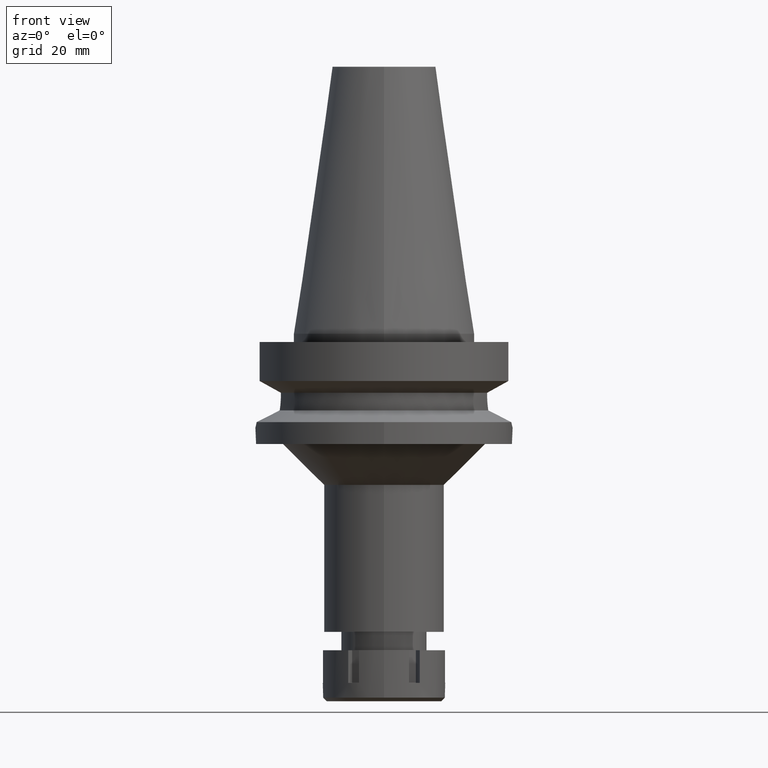
[diagram: clean part render]
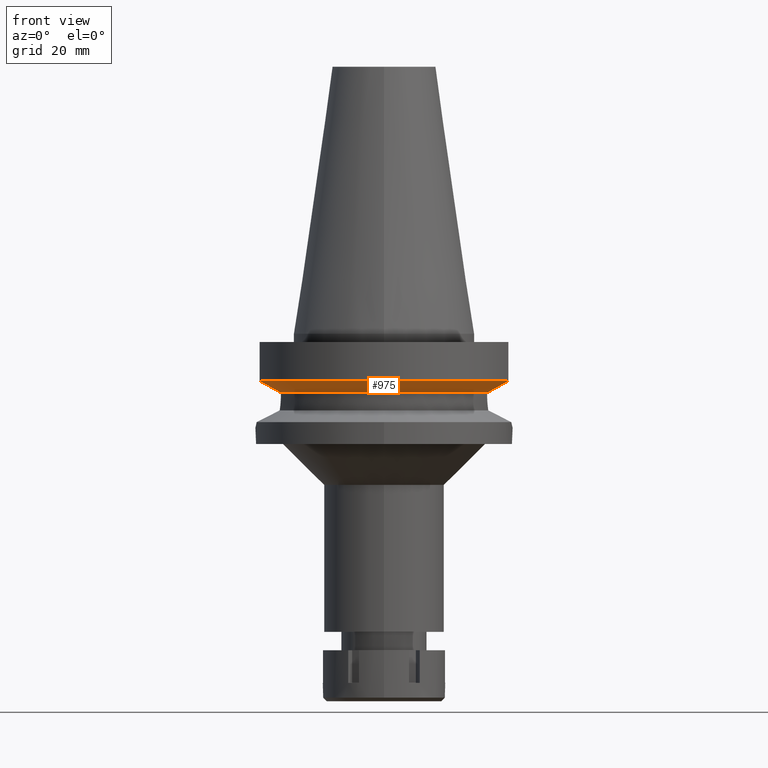
[diagram: same view with one face highlighted and labeled with its STEP entity id]
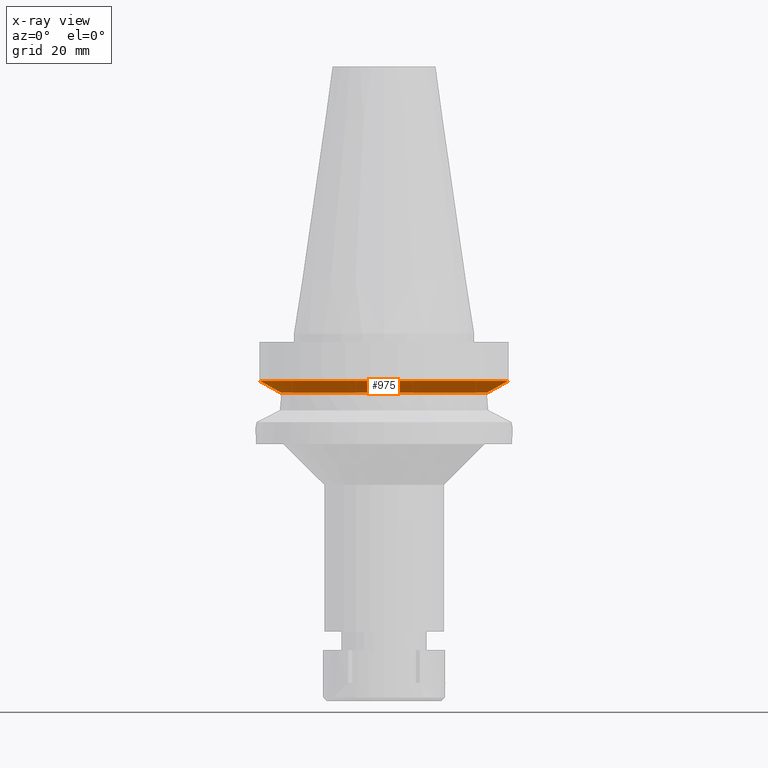
[diagram: x-ray of the same camera — body ghosted, the highlighted face saturated]
A machine part, front view. The second image highlights one B-rep face of the part: STEP entity #975.
The next image is the same camera in x-ray: the body ghosted, the highlighted face saturated — about 0% of this face is hidden behind the body in this view.
In plain terms, the highlighted conical surface has half-angle 60 deg.
Its self-contained STEP definition (entity closure, byte-faithful):
#33 = EDGE_CURVE ( 'NONE', #2329, #616, #1383, .T. ) ;
#96 = ORIENTED_EDGE ( 'NONE', *, *, #3308, .T. ) ;
#148 = B_SPLINE_CURVE_WITH_KNOTS ( 'NONE', 3,
 ( #1047, #1026, #1285, #1938 ),
 .UNSPECIFIED., .F., .F.,
 ( 4, 4 ),
 ( 0.0000000000000000000, 1.000000000000000000 ),
 .UNSPECIFIED. ) ;
#188 = AXIS2_PLACEMENT_3D ( 'NONE', #661, #1467, #2915 ) ;
#272 = CARTESIAN_POINT ( 'NONE',  ( 30.45402272279000044, -8.049999999999000622, -11.56550565266999975 ) ) ;
#328 = CARTESIAN_POINT ( 'NONE',  ( -28.57292325414670486, -8.049998554783693194, -12.61549607589054212 ) ) ;
#451 = CARTESIAN_POINT ( 'NONE',  ( 25.24772266958000344, -8.050000000000000711, -14.45225699861000024 ) ) ;
#616 = VERTEX_POINT ( 'NONE', #272 ) ;
#661 = CARTESIAN_POINT ( 'NONE',  ( 0.0000000000000000000, 1.065333950388000029E-14, -11.56550565266999975 ) ) ;
#737 = CIRCLE ( 'NONE', #1398, 26.50000000000000711 ) ;
#809 = ORIENTED_EDGE ( 'NONE', *, *, #33, .F. ) ;
#891 = VERTEX_POINT ( 'NONE', #451 ) ;
#954 = CARTESIAN_POINT ( 'NONE',  ( -30.45402291391999938, -8.049999276920999591, -11.56551216528999859 ) ) ;
#975 = ADVANCED_FACE ( 'NONE', ( #1391 ), #2022, .T. ) ;
#1008 = DIRECTION ( 'NONE',  ( 0.9527442516822307583, -0.3037735849057093818, 0.0000000000000000000 ) ) ;
#1026 = CARTESIAN_POINT ( 'NONE',  ( 26.83757718998259278, -8.050003169609766474, -13.57772971496465431 ) ) ;
#1047 = CARTESIAN_POINT ( 'NONE',  ( 25.24772266958000344, -8.050000000000000711, -14.45225699861000024 ) ) ;
#1052 = ORIENTED_EDGE ( 'NONE', *, *, #3566, .F. ) ;
#1257 = ORIENTED_EDGE ( 'NONE', *, *, #1416, .T. ) ;
#1285 = CARTESIAN_POINT ( 'NONE',  ( 28.57294940656076676, -8.050008287769291115, -12.61547996380608971 ) ) ;
#1383 = CIRCLE ( 'NONE', #188, 31.50000000000000000 ) ;
#1391 = FACE_OUTER_BOUND ( 'NONE', #3244, .T. ) ;
#1398 = AXIS2_PLACEMENT_3D ( 'NONE', #2363, #2999, #1008 ) ;
#1416 = EDGE_CURVE ( 'NONE', #891, #616, #148, .T. ) ;
#1422 = CARTESIAN_POINT ( 'NONE',  ( -25.24772413223999834, -8.049995412576999243, -14.45229205250999804 ) ) ;
#1444 = CARTESIAN_POINT ( 'NONE',  ( -25.24772413223999834, -8.049995412576999243, -14.45229205250999804 ) ) ;
#1467 = DIRECTION ( 'NONE',  ( 0.0000000000000000000, 0.0000000000000000000, 1.000000000000000000 ) ) ;
#1887 = CARTESIAN_POINT ( 'NONE',  ( 0.0000000000000000000, 1.065333950388000029E-14, -13.00888132564000088 ) ) ;
#1938 = CARTESIAN_POINT ( 'NONE',  ( 30.45402272279000044, -8.049999999999000622, -11.56550565266999975 ) ) ;
#2022 = CONICAL_SURFACE ( 'NONE', #3216, 29.00000000000000000, 1.047197551196400456 ) ;
#2171 = DIRECTION ( 'NONE',  ( 0.0000000000000000000, 1.000000000000000000, 0.0000000000000000000 ) ) ;
#2211 = DIRECTION ( 'NONE',  ( 0.0000000000000000000, 0.0000000000000000000, 1.000000000000000000 ) ) ;
#2329 = VERTEX_POINT ( 'NONE', #2402 ) ;
#2363 = CARTESIAN_POINT ( 'NONE',  ( 0.0000000000000000000, 1.065333950388000029E-14, -14.45225699861000024 ) ) ;
#2402 = CARTESIAN_POINT ( 'NONE',  ( -30.45402291391999938, -8.049999276920999591, -11.56551216528999859 ) ) ;
#2567 = VERTEX_POINT ( 'NONE', #1422 ) ;
#2885 = CARTESIAN_POINT ( 'NONE',  ( -26.83754612220824143, -8.049990814995480193, -13.57774890297899617 ) ) ;
#2915 = DIRECTION ( 'NONE',  ( 0.0000000000000000000, -1.000000000000000000, 0.0000000000000000000 ) ) ;
#2999 = DIRECTION ( 'NONE',  ( 0.0000000000000000000, 0.0000000000000000000, -1.000000000000000000 ) ) ;
#3130 = B_SPLINE_CURVE_WITH_KNOTS ( 'NONE', 3,
 ( #954, #328, #2885, #1444 ),
 .UNSPECIFIED., .F., .F.,
 ( 4, 4 ),
 ( 0.0000000000000000000, 1.000000000000000000 ),
 .UNSPECIFIED. ) ;
#3216 = AXIS2_PLACEMENT_3D ( 'NONE', #1887, #2211, #2171 ) ;
#3244 = EDGE_LOOP ( 'NONE', ( #96, #1052, #1257, #809 ) ) ;
#3308 = EDGE_CURVE ( 'NONE', #2329, #2567, #3130, .T. ) ;
#3566 = EDGE_CURVE ( 'NONE', #891, #2567, #737, .T. ) ;